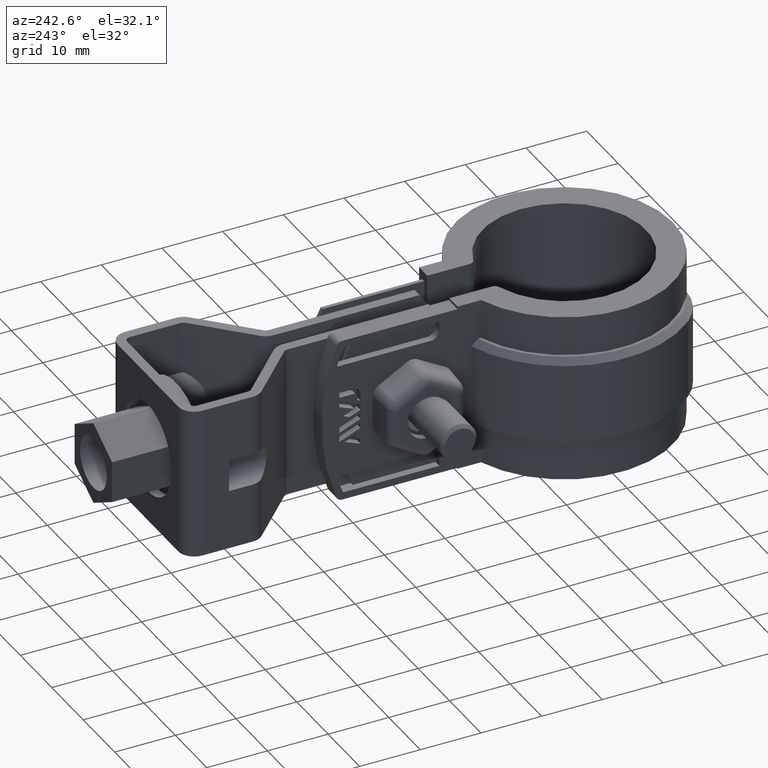
[diagram: clean part render]
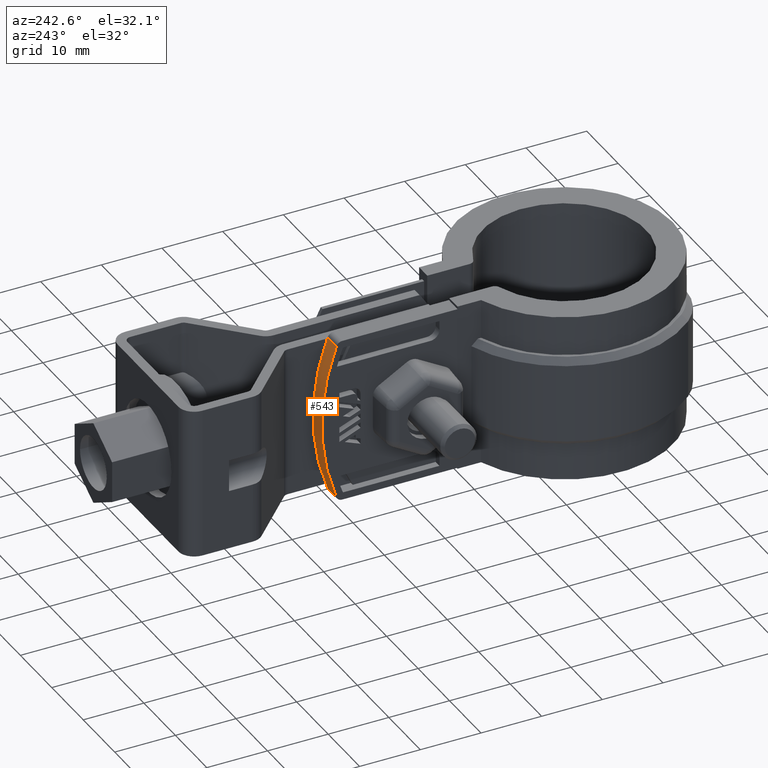
[diagram: same view with one face highlighted and labeled with its STEP entity id]
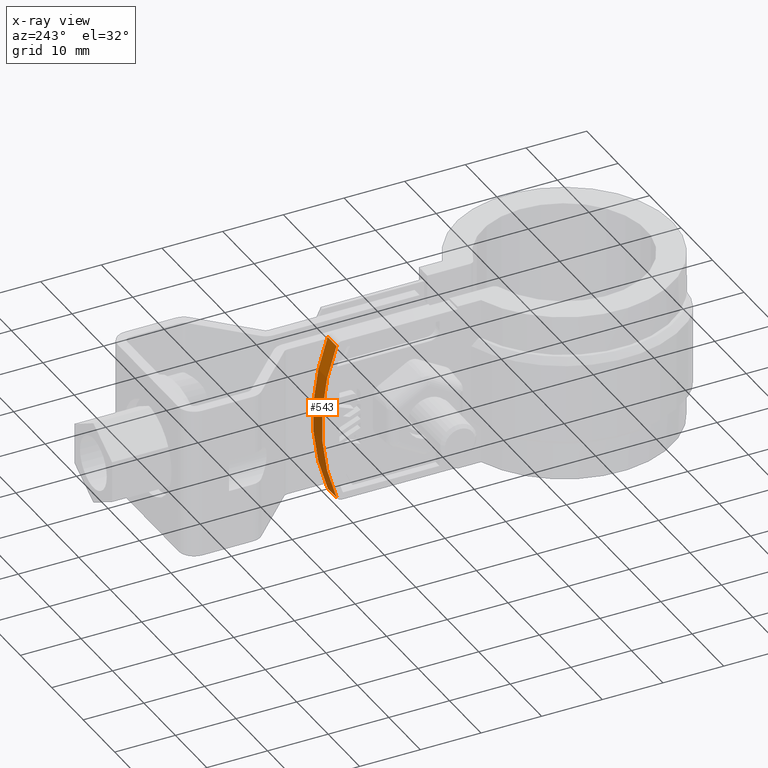
[diagram: x-ray of the same camera — body ghosted, the highlighted face saturated]
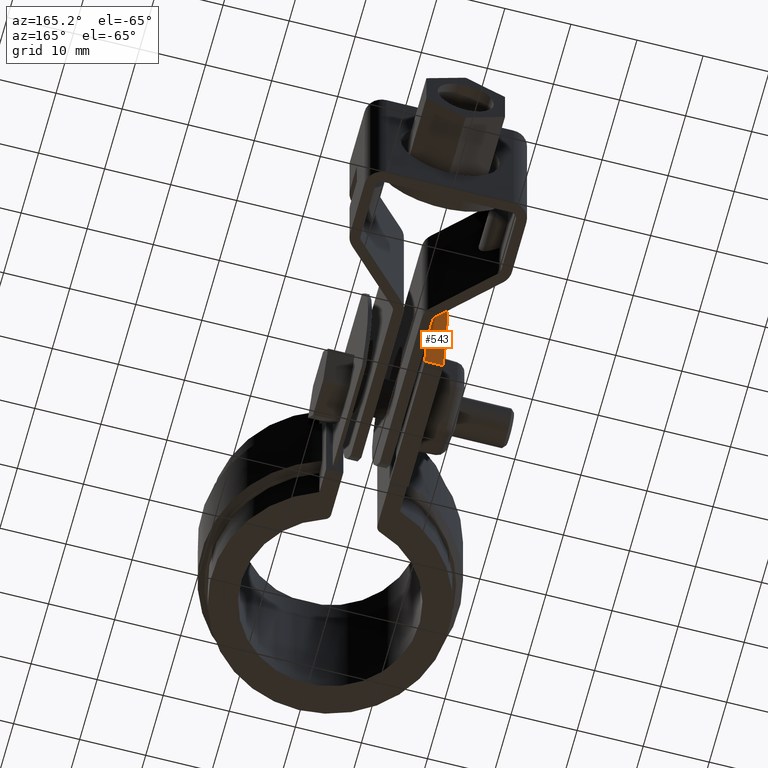
[diagram: same view with one face highlighted and labeled with its STEP entity id]
A machine part, auxiliary view. The second image highlights one B-rep face of the part: STEP entity #543.
The next image is the same camera in x-ray: the body ghosted, the highlighted face saturated — about 0% of this face is hidden behind the body in this view.
A second angle (auxiliary view) of the same face is appended — the face is thin or edge-on in the first view.
In plain terms, the highlighted cylindrical surface (partial cylindrical patch) has radius 36.4 mm, axis along (1, 0, -0).
Its self-contained STEP definition (entity closure, byte-faithful):
#543 = ADVANCED_FACE( '', ( #1086 ), #1087, .T. );
#1086 = FACE_OUTER_BOUND( '', #2167, .T. );
#1087 = CYLINDRICAL_SURFACE( '', #2168, 36.4000000000000 );
#2167 = EDGE_LOOP( '', ( #4929, #4930, #4931, #4932 ) );
#2168 = AXIS2_PLACEMENT_3D( '', #4933, #4934, #4935 );
#4929 = ORIENTED_EDGE( '', *, *, #6657, .T. );
#4930 = ORIENTED_EDGE( '', *, *, #6658, .T. );
#4931 = ORIENTED_EDGE( '', *, *, #6588, .F. );
#4932 = ORIENTED_EDGE( '', *, *, #6659, .T. );
#4933 = CARTESIAN_POINT( '', ( -3.50000000000003, 6.82194656581947, -12.5000000000001 ) );
#4934 = DIRECTION( '', ( 1.00000000000000, 1.77553823037274E-016, -1.31611162143705E-020 ) );
#4935 = DIRECTION( '', ( -1.64492975916827E-016, 0.926467966726517, 0.376373626373626 ) );
#6588 = EDGE_CURVE( '', #7948, #7939, #7950, .T. );
#6657 = EDGE_CURVE( '', #8084, #8085, #8086, .T. );
#6658 = EDGE_CURVE( '', #8085, #7939, #8087, .T. );
#6659 = EDGE_CURVE( '', #7948, #8084, #8088, .F. );
#7939 = VERTEX_POINT( '', #11215 );
#7948 = VERTEX_POINT( '', #11227 );
#7950 = CIRCLE( '', #11229, 36.4000000000000 );
#8084 = VERTEX_POINT( '', #11424 );
#8085 = VERTEX_POINT( '', #11425 );
#8086 = CIRCLE( '', #11426, 36.4000000000000 );
#8087 = LINE( '', #11427, #11428 );
#8088 = LINE( '', #11429, #11430 );
#11215 = CARTESIAN_POINT( '', ( -6.30000000000003, 40.7988337686200, -25.5587570621470 ) );
#11227 = CARTESIAN_POINT( '', ( -6.30000000000003, 40.7988337686200, 0.558757062146803 ) );
#11229 = AXIS2_PLACEMENT_3D( '', #12763, #12764, #12765 );
#11424 = CARTESIAN_POINT( '', ( -3.50000000000003, 40.7988337686200, 0.558757062146803 ) );
#11425 = CARTESIAN_POINT( '', ( -3.50000000000003, 40.7988337686200, -25.5587570621470 ) );
#11426 = AXIS2_PLACEMENT_3D( '', #12848, #12849, #12850 );
#11427 = CARTESIAN_POINT( '', ( -3.50000000000004, 40.7988337686200, -25.5587570621470 ) );
#11428 = VECTOR( '', #12851, 1000.00000000000 );
#11429 = CARTESIAN_POINT( '', ( -3.50000000000004, 40.7988337686200, 0.558757062146807 ) );
#11430 = VECTOR( '', #12852, 1000.00000000000 );
#12763 = CARTESIAN_POINT( '', ( -6.30000000000003, 6.82194656581947, -12.5000000000001 ) );
#12764 = DIRECTION( '', ( -1.00000000000000, 6.07323687177816E-017, 1.31611162144383E-020 ) );
#12765 = DIRECTION( '', ( 1.31611162144249E-020, -2.22044604925031E-016, 1.00000000000000 ) );
#12848 = CARTESIAN_POINT( '', ( -3.50000000000003, 6.82194656581947, -12.5000000000001 ) );
#12849 = DIRECTION( '', ( -1.00000000000000, 6.07323687177816E-017, 1.31611162144383E-020 ) );
#12850 = DIRECTION( '', ( 1.31611162144249E-020, -2.22044604925031E-016, 1.00000000000000 ) );
#12851 = DIRECTION( '', ( -1.00000000000000, -1.77553823037274E-016, 1.31611162143767E-020 ) );
#12852 = DIRECTION( '', ( -1.00000000000000, -1.77553823037274E-016, 1.31611162143767E-020 ) );